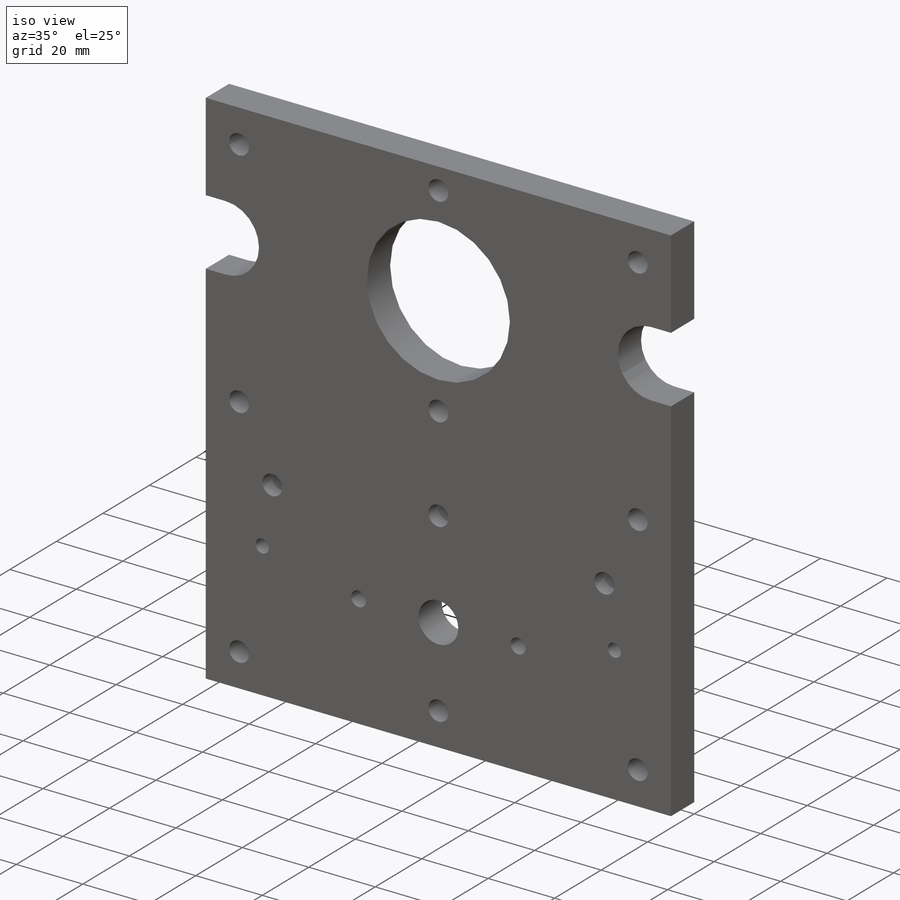
[diagram: iso view]
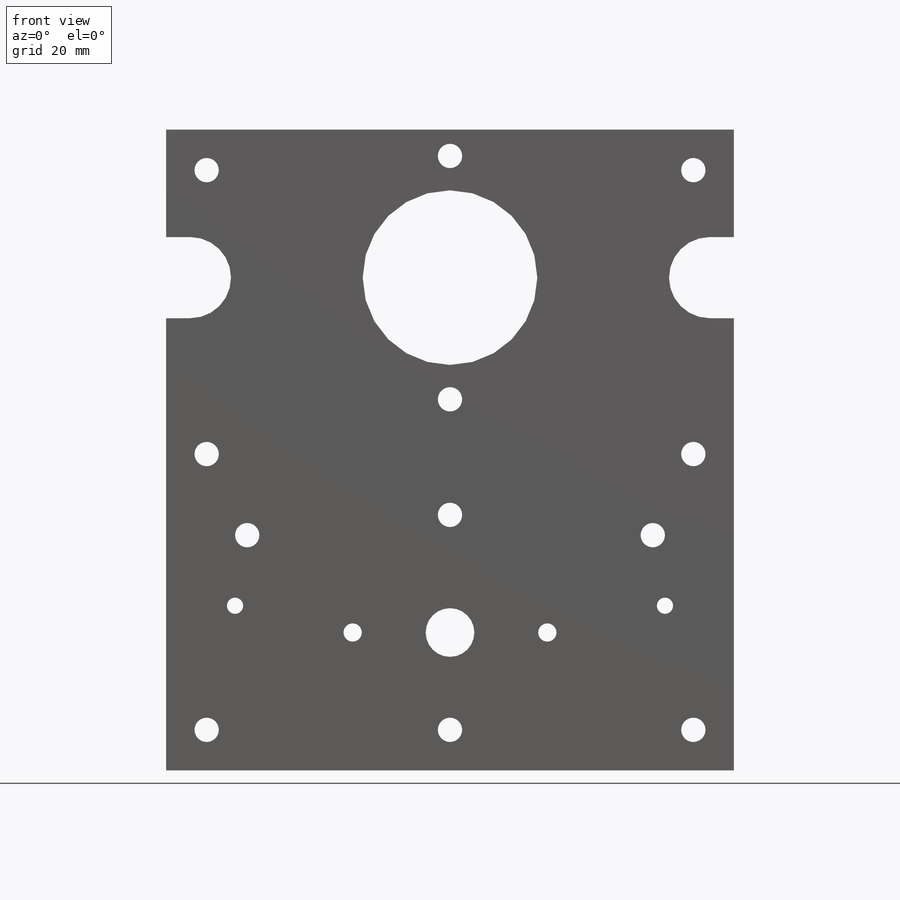
[diagram: front view]
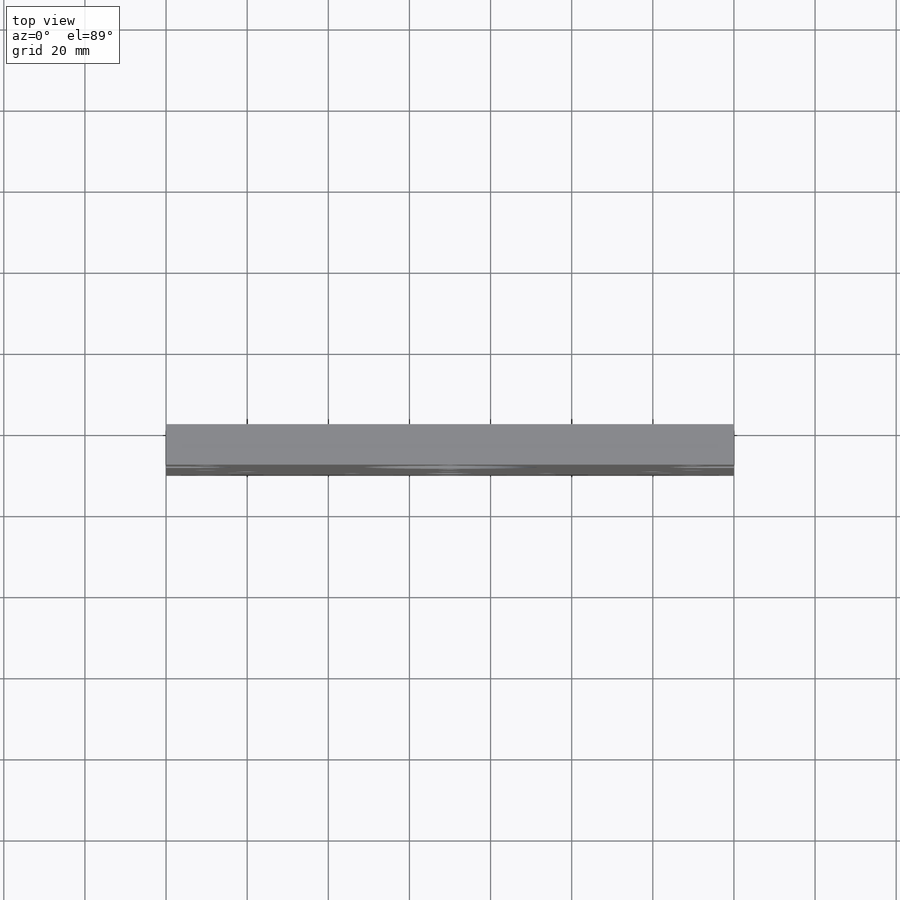
[diagram: top view]
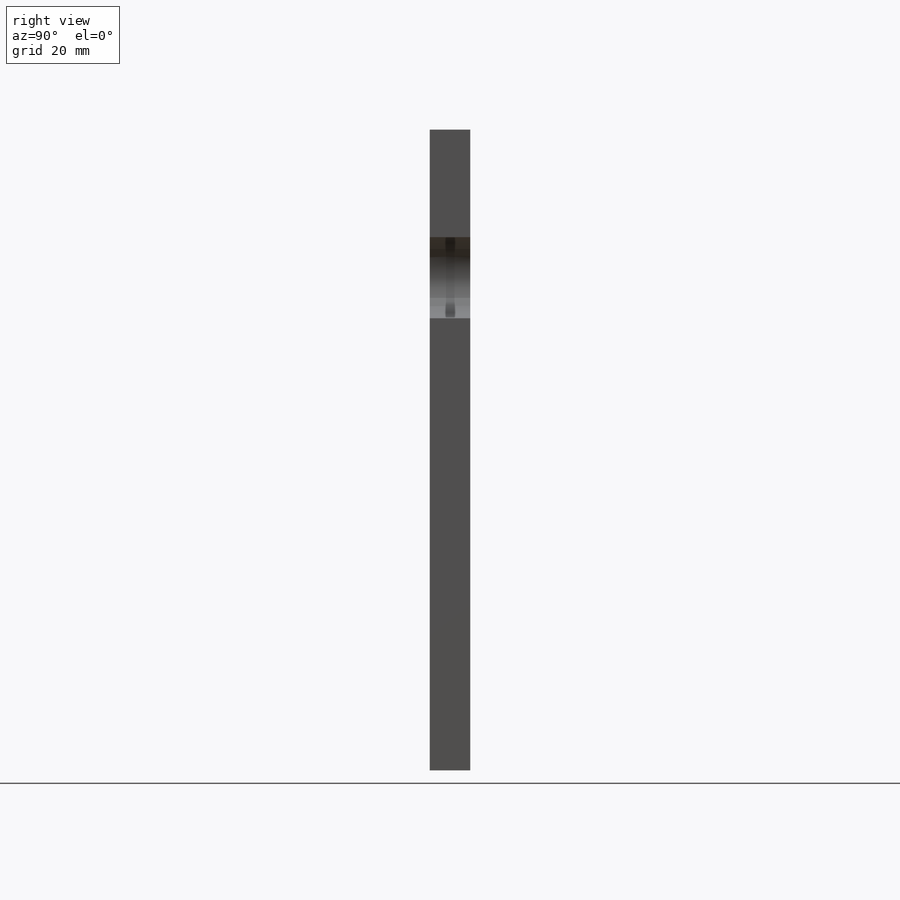
[diagram: right view]
SOLIDWORKS PART (.sldprt)
format: sldprt  version: not decoded by parser v0  size: 523,264 bytes
history: native  units: mm
features: sketch x8, cut_extrude x6, extrude x2, material x1, sheet_metal_op x1 (+13 scaffold rows collapsed)
feature tree (31):
  scaffold x13  (default folders/planes/origin — collapsed)
  material  "7079 Alloy"
  sketch  "Sketch1"  dims[c1.D3=~6.204289mm c1.D1=68.0mm c1.D2=140.0mm c2.D3=26.9mm c2.D4=17.0mm c2.D5=26.9mm c2.D6=17.0mm c3.D5=27.4mm c3.D3=27.4mm]
  extrude  "Extrude1"  Depth=10mm
  sketch  "Sketch2"  dims[D1=4.0mm]
  cut_extrude  "Cut-Extrude1"  Depth=10mm
  sketch  "Sketch4"  dims[D1=10.0mm]
  cut_extrude  "Cut-Extrude2"  Depth=6mm
  sketch  "Sketch5"  dims[c1.D2=~23.47419mm c1.D1=90.0mm c2.D2=50.0mm]
  extrude  "Extrude2"  Depth=10mm
  sketch  "Sketch6"  dims[D1=28.5mm]
  cut_extrude  "Cut-Extrude3"  Depth=10mm
  sketch  "Sketch8"  dims[D1=4.0mm]
  cut_extrude  "Cut-Extrude4"  Depth=10mm
  sketch  "Sketch9"  dims[D1=~3.87546mm]
  cut_extrude  "Cut-Extrude5"  Depth=4mm
  sketch  "Sketch10"  dims[D1=10.0mm]
  cut_extrude  "Cut-Extrude6"  Depth=10mm
  sheet_metal_op  "Sheet-Metal1"  Thickness=1mm
decode coverage: 17 of 17 modeling features carry decoded parameters
note: ~ marks probable driven/reference dimensions
note: suppression state not decoded; provenance and decode notes live in map.json
